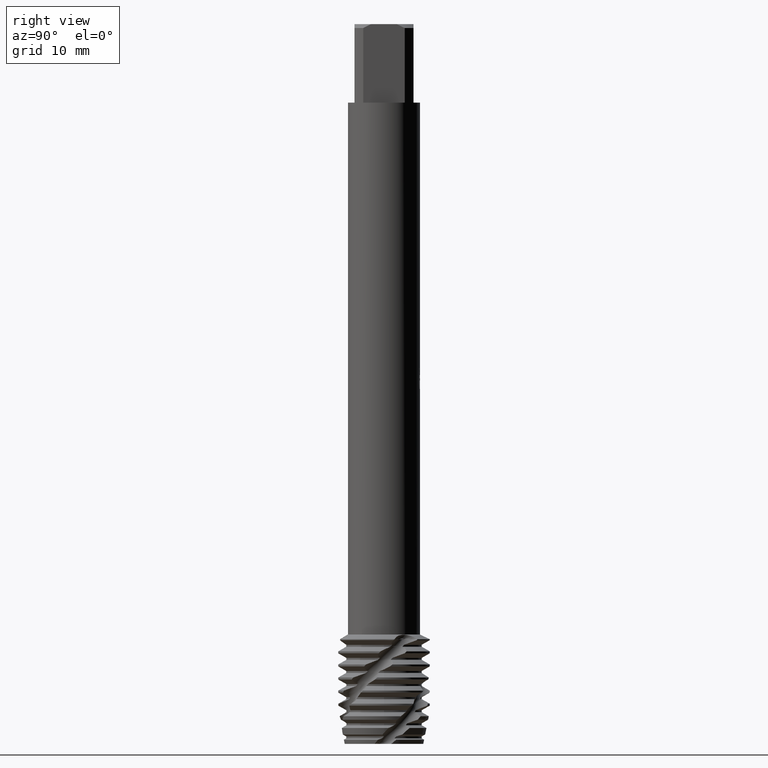
[diagram: clean part render]
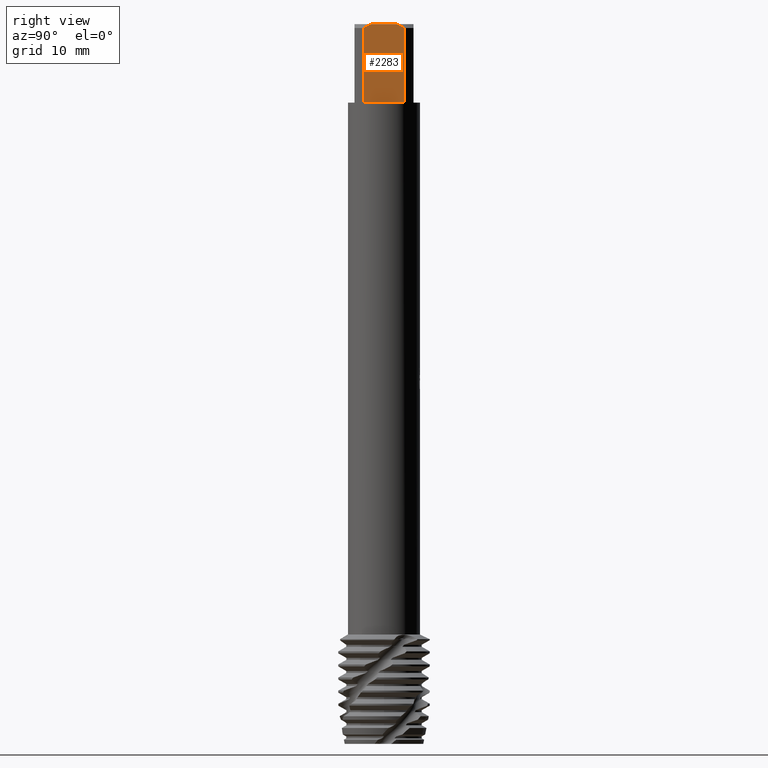
[diagram: same view with one face highlighted and labeled with its STEP entity id]
A machine part, right view. The second image highlights one B-rep face of the part: STEP entity #2283.
In plain terms, the highlighted planar face has unit normal (1, 0, 0).
Its self-contained STEP definition (entity closure, byte-faithful):
#1351=EDGE_CURVE('',#1905,#3269,#3673,.T.);
#1585=VERTEX_POINT('',#3929);
#1723=VERTEX_POINT('',#4084);
#1827=EDGE_CURVE('',#1585,#2095,#4201,.T.);
#1905=VERTEX_POINT('',#4282);
#2095=VERTEX_POINT('',#4489);
#2151=VERTEX_POINT('',#4549);
#2283=ADVANCED_FACE('',(#4697),#4698,.T.);
#2505=EDGE_CURVE('',#2151,#1905,#4938,.T.);
#2631=EDGE_CURVE('',#3269,#1585,#5075,.T.);
#3239=EDGE_CURVE('',#1723,#2151,#5738,.T.);
#3269=VERTEX_POINT('',#5771);
#3431=EDGE_CURVE('',#2095,#1723,#5940,.T.);
#3673=LINE('',#6386,#6387);
#3929=CARTESIAN_POINT('',(4.5,-3.16227766016838,-0.600000000000001));
#4084=CARTESIAN_POINT('',(4.5,1.93907194296653,0.0));
#4201=(B_SPLINE_CURVE(2,(#7893,#7894,#7895),.UNSPECIFIED.,.F.,.F.)B_SPLINE_CURVE_WITH_KNOTS((3,3),(0.0,1.36332667237171),.UNSPECIFIED.)RATIONAL_B_SPLINE_CURVE((1.0,1.00698935364432,1.0))BOUNDED_CURVE()REPRESENTATION_ITEM('')GEOMETRIC_REPRESENTATION_ITEM()CURVE());
#4282=CARTESIAN_POINT('',(4.5,3.16227766016838,-12.0));
#4489=CARTESIAN_POINT('',(4.5,-1.93907194296653,0.0));
#4549=CARTESIAN_POINT('',(4.5,3.16227766016838,-0.600000000000001));
#4697=FACE_OUTER_BOUND('',#9084,.T.);
#4698=PLANE('',#9085);
#4938=LINE('',#10102,#10103);
#5075=LINE('',#10451,#10452);
#5738=(B_SPLINE_CURVE(2,(#12698,#12699,#12700),.UNSPECIFIED.,.F.,.F.)B_SPLINE_CURVE_WITH_KNOTS((3,3),(0.0,1.36332667237171),.UNSPECIFIED.)RATIONAL_B_SPLINE_CURVE((1.0,1.00698935364432,1.0))BOUNDED_CURVE()REPRESENTATION_ITEM('')GEOMETRIC_REPRESENTATION_ITEM()CURVE());
#5771=CARTESIAN_POINT('',(4.5,-3.16227766016838,-12.0));
#5940=LINE('',#13187,#13188);
#6386=CARTESIAN_POINT('',(4.5,0.0,-12.0));
#6387=VECTOR('',#13502,1.0);
#7893=CARTESIAN_POINT('',(4.5,-3.16227766016837,-0.600000000000001));
#7894=CARTESIAN_POINT('',(4.5,-2.51539002126354,-0.228065758336761));
#7895=CARTESIAN_POINT('',(4.5,-1.93907194296652,-5.55111512312578E-017));
#9084=EDGE_LOOP('',(#14591,#14592,#14593,#14594,#14595,#14596));
#9085=AXIS2_PLACEMENT_3D('',#14597,#14598,#14599);
#10102=CARTESIAN_POINT('',(4.5,3.16227766016838,-6.3));
#10103=VECTOR('',#14966,1.0);
#10451=CARTESIAN_POINT('',(4.5,-3.16227766016838,-6.3));
#10452=VECTOR('',#15100,1.0);
#12698=CARTESIAN_POINT('',(4.5,1.93907194296652,-5.55111512312578E-017));
#12699=CARTESIAN_POINT('',(4.5,2.51539002126354,-0.228065758336761));
#12700=CARTESIAN_POINT('',(4.5,3.16227766016837,-0.600000000000001));
#13187=CARTESIAN_POINT('',(4.5,1.225,0.0));
#13188=VECTOR('',#15981,1.0);
#13502=DIRECTION('',(0.0,-1.0,0.0));
#14591=ORIENTED_EDGE('',*,*,#2505,.F.);
#14592=ORIENTED_EDGE('',*,*,#3239,.F.);
#14593=ORIENTED_EDGE('',*,*,#3431,.F.);
#14594=ORIENTED_EDGE('',*,*,#1827,.F.);
#14595=ORIENTED_EDGE('',*,*,#2631,.F.);
#14596=ORIENTED_EDGE('',*,*,#1351,.F.);
#14597=CARTESIAN_POINT('',(4.5,0.0,-5.5));
#14598=DIRECTION('',(1.0,0.0,0.0));
#14599=DIRECTION('',(0.0,0.0,-1.0));
#14966=DIRECTION('',(0.0,0.0,-1.0));
#15100=DIRECTION('',(-0.0,-0.0,1.0));
#15981=DIRECTION('',(-0.0,1.0,0.0));